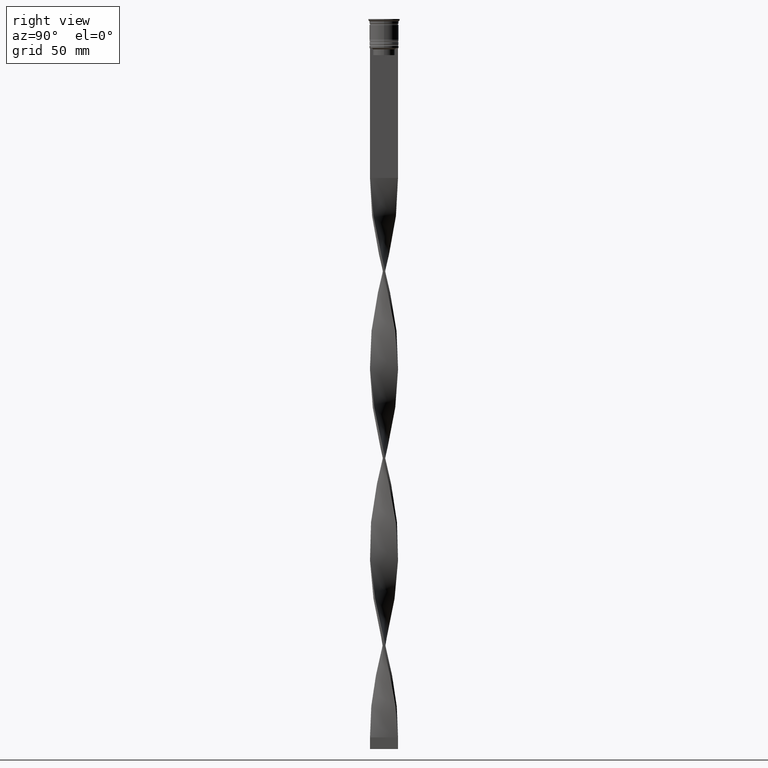
[diagram: clean part render]
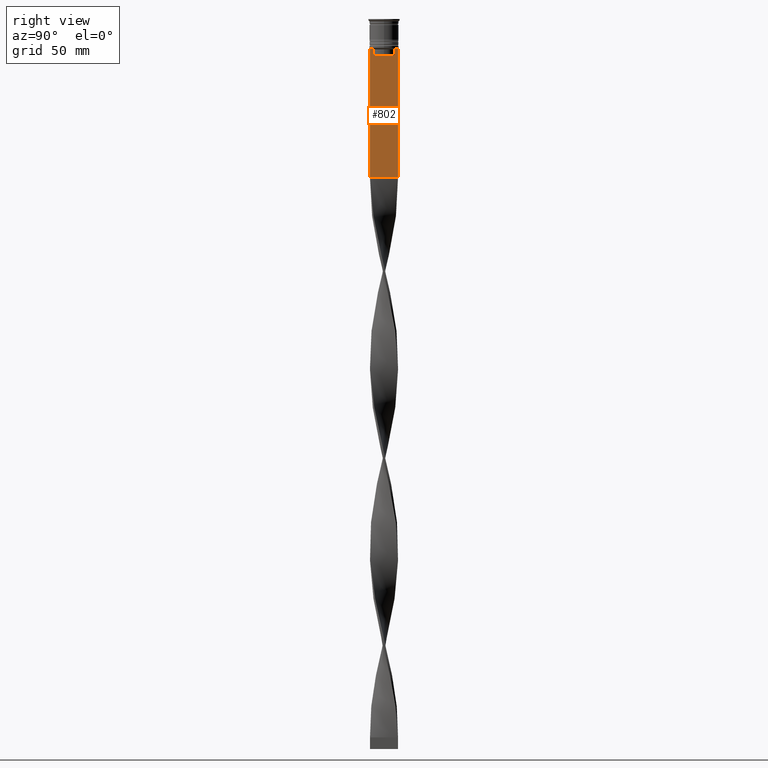
[diagram: same view with one face highlighted and labeled with its STEP entity id]
A machine part, right view. The second image highlights one B-rep face of the part: STEP entity #802.
In plain terms, the highlighted planar face has unit normal (-1, 0, 0).
Its self-contained STEP definition (entity closure, byte-faithful):
#9 = CARTESIAN_POINT ( 'NONE',  ( 0.5000000000000002220, -4.623040125285526436, 0.000000000000000000 ) ) ;
#41 = EDGE_CURVE ( 'NONE', #1544, #2707, #1868, .T. ) ;
#107 = EDGE_CURVE ( 'NONE', #753, #2273, #2910, .T. ) ;
#185 = ORIENTED_EDGE ( 'NONE', *, *, #3658, .T. ) ;
#275 = B_SPLINE_CURVE_WITH_KNOTS ( 'NONE', 3,
 ( #2574, #1315, #2221, #3180 ),
 .UNSPECIFIED., .F., .F.,
 ( 4, 4 ),
 ( 0.02203698174624554168, 0.02275222543365897770 ),
 .UNSPECIFIED. ) ;
#293 = CARTESIAN_POINT ( 'NONE',  ( 0.5000000000000002220, -4.623040125285526436, -15.50000000000000000 ) ) ;
#296 = CARTESIAN_POINT ( 'NONE',  ( 0.5000000000000002220, 4.623040125285526436, -13.00000000000000178 ) ) ;
#368 = CARTESIAN_POINT ( 'NONE',  ( 0.5000000000000002220, 5.125670687822231564, -12.50000000000000000 ) ) ;
#387 = ORIENTED_EDGE ( 'NONE', *, *, #2820, .T. ) ;
#430 = CARTESIAN_POINT ( 'NONE',  ( 0.5000000000000002220, 4.650000000000001243, -15.50000000000000000 ) ) ;
#523 = ORIENTED_EDGE ( 'NONE', *, *, #2018, .T. ) ;
#591 = CARTESIAN_POINT ( 'NONE',  ( 0.5000000000000002220, -6.000000000000000000, -68.00000000000000000 ) ) ;
#617 = DIRECTION ( 'NONE',  ( 0.000000000000000000, 0.000000000000000000, -1.000000000000000000 ) ) ;
#649 = B_SPLINE_CURVE_WITH_KNOTS ( 'NONE', 3,
 ( #1778, #3022, #1481, #2718 ),
 .UNSPECIFIED., .F., .F.,
 ( 4, 4 ),
 ( 0.008759809102772709091, 0.009468778395565353653 ),
 .UNSPECIFIED. ) ;
#679 = DIRECTION ( 'NONE',  ( 0.000000000000000000, -1.000000000000000000, 0.000000000000000000 ) ) ;
#753 = VERTEX_POINT ( 'NONE', #1066 ) ;
#763 = ORIENTED_EDGE ( 'NONE', *, *, #1148, .F. ) ;
#789 = VECTOR ( 'NONE', #2602, 1000.000000000000000 ) ;
#802 = ADVANCED_FACE ( 'NONE', ( #2369 ), #3262, .F. ) ;
#917 = VERTEX_POINT ( 'NONE', #2185 ) ;
#974 = AXIS2_PLACEMENT_3D ( 'NONE', #1418, #1105, #1763 ) ;
#983 = CARTESIAN_POINT ( 'NONE',  ( 0.5000000000000002220, -6.000000000000000000, -12.50000000000000000 ) ) ;
#1066 = CARTESIAN_POINT ( 'NONE',  ( 0.5000000000000002220, -6.000000000000000000, -12.50000000000000000 ) ) ;
#1105 = DIRECTION ( 'NONE',  ( -1.000000000000000000, 0.000000000000000000, 0.000000000000000000 ) ) ;
#1121 = EDGE_CURVE ( 'NONE', #2707, #917, #275, .T. ) ;
#1141 = EDGE_LOOP ( 'NONE', ( #185, #2027, #3665, #523, #3512, #2997, #387, #3747, #1647, #763 ) ) ;
#1148 = EDGE_CURVE ( 'NONE', #2991, #2174, #3222, .T. ) ;
#1209 = VECTOR ( 'NONE', #2187, 1000.000000000000000 ) ;
#1230 = LINE ( 'NONE', #2469, #2219 ) ;
#1275 = DIRECTION ( 'NONE',  ( 0.000000000000000000, 0.000000000000000000, -1.000000000000000000 ) ) ;
#1315 = CARTESIAN_POINT ( 'NONE',  ( 0.5000000000000002220, -4.790630799407577634, -12.83338098686238915 ) ) ;
#1418 = CARTESIAN_POINT ( 'NONE',  ( 0.5000000000000002220, -6.000000000000000000, -0.4584054212077061097 ) ) ;
#1472 = VECTOR ( 'NONE', #1996, 1000.000000000000000 ) ;
#1481 = CARTESIAN_POINT ( 'NONE',  ( 0.5000000000000002220, 4.790630915080664742, -12.83338087185995491 ) ) ;
#1544 = VERTEX_POINT ( 'NONE', #293 ) ;
#1560 = DIRECTION ( 'NONE',  ( 0.000000000000000000, -1.000000000000000000, 0.000000000000000000 ) ) ;
#1573 = EDGE_CURVE ( 'NONE', #3766, #1685, #1230, .T. ) ;
#1583 = EDGE_CURVE ( 'NONE', #2076, #3766, #649, .T. ) ;
#1591 = DIRECTION ( 'NONE',  ( 0.000000000000000000, 1.000000000000000000, 0.000000000000000000 ) ) ;
#1647 = ORIENTED_EDGE ( 'NONE', *, *, #3116, .T. ) ;
#1685 = VERTEX_POINT ( 'NONE', #3331 ) ;
#1711 = CARTESIAN_POINT ( 'NONE',  ( 0.5000000000000002220, 6.000000000000000888, -12.50000000000000000 ) ) ;
#1715 = VECTOR ( 'NONE', #1560, 1000.000000000000000 ) ;
#1763 = DIRECTION ( 'NONE',  ( 0.000000000000000000, 0.000000000000000000, 1.000000000000000000 ) ) ;
#1778 = CARTESIAN_POINT ( 'NONE',  ( 0.5000000000000002220, 5.125670687822231564, -12.50000000000000000 ) ) ;
#1868 = LINE ( 'NONE', #9, #1209 ) ;
#1996 = DIRECTION ( 'NONE',  ( 0.000000000000000000, 0.000000000000000000, -1.000000000000000000 ) ) ;
#2018 = EDGE_CURVE ( 'NONE', #1685, #1544, #2907, .T. ) ;
#2027 = ORIENTED_EDGE ( 'NONE', *, *, #1583, .T. ) ;
#2076 = VERTEX_POINT ( 'NONE', #368 ) ;
#2105 = LINE ( 'NONE', #3972, #1715 ) ;
#2133 = LINE ( 'NONE', #591, #3724 ) ;
#2174 = VERTEX_POINT ( 'NONE', #2355 ) ;
#2185 = CARTESIAN_POINT ( 'NONE',  ( 0.5000000000000002220, -5.125670687822231564, -12.50000000000000000 ) ) ;
#2187 = DIRECTION ( 'NONE',  ( -0.000000000000000000, -0.000000000000000000, 1.000000000000000000 ) ) ;
#2219 = VECTOR ( 'NONE', #617, 1000.000000000000000 ) ;
#2221 = CARTESIAN_POINT ( 'NONE',  ( 0.5000000000000002220, -4.958169719475986170, -12.66670967060858111 ) ) ;
#2273 = VERTEX_POINT ( 'NONE', #2990 ) ;
#2355 = CARTESIAN_POINT ( 'NONE',  ( 0.5000000000000002220, 6.000000000000000888, -68.00000000000000000 ) ) ;
#2369 = FACE_OUTER_BOUND ( 'NONE', #1141, .T. ) ;
#2469 = CARTESIAN_POINT ( 'NONE',  ( 0.5000000000000002220, 4.623040125285526436, 0.000000000000000000 ) ) ;
#2574 = CARTESIAN_POINT ( 'NONE',  ( 0.5000000000000002220, -4.623040125285526436, -13.00000000000000178 ) ) ;
#2602 = DIRECTION ( 'NONE',  ( 0.000000000000000000, -1.000000000000000000, 0.000000000000000000 ) ) ;
#2707 = VERTEX_POINT ( 'NONE', #3345 ) ;
#2718 = CARTESIAN_POINT ( 'NONE',  ( 0.5000000000000002220, 4.623040125285526436, -13.00000000000000178 ) ) ;
#2820 = EDGE_CURVE ( 'NONE', #917, #753, #3711, .T. ) ;
#2907 = LINE ( 'NONE', #430, #789 ) ;
#2910 = LINE ( 'NONE', #3138, #1472 ) ;
#2990 = CARTESIAN_POINT ( 'NONE',  ( 0.5000000000000002220, -5.999999999999999112, -68.00000000000000000 ) ) ;
#2991 = VERTEX_POINT ( 'NONE', #1711 ) ;
#2997 = ORIENTED_EDGE ( 'NONE', *, *, #1121, .T. ) ;
#3022 = CARTESIAN_POINT ( 'NONE',  ( 0.5000000000000002220, 4.958169823806760412, -12.66670956677067927 ) ) ;
#3116 = EDGE_CURVE ( 'NONE', #2273, #2174, #2133, .T. ) ;
#3138 = CARTESIAN_POINT ( 'NONE',  ( 0.5000000000000002220, -6.000000000000000000, -0.4584054212077061097 ) ) ;
#3180 = CARTESIAN_POINT ( 'NONE',  ( 0.5000000000000002220, -5.125670687822231564, -12.50000000000000000 ) ) ;
#3199 = CARTESIAN_POINT ( 'NONE',  ( 0.5000000000000002220, 6.000000000000000888, -0.4584054212077061097 ) ) ;
#3222 = LINE ( 'NONE', #3199, #3844 ) ;
#3262 = PLANE ( 'NONE',  #974 ) ;
#3331 = CARTESIAN_POINT ( 'NONE',  ( 0.5000000000000002220, 4.623040125285526436, -15.50000000000000000 ) ) ;
#3345 = CARTESIAN_POINT ( 'NONE',  ( 0.5000000000000002220, -4.623040125285526436, -13.00000000000000178 ) ) ;
#3512 = ORIENTED_EDGE ( 'NONE', *, *, #41, .T. ) ;
#3521 = VECTOR ( 'NONE', #679, 1000.000000000000000 ) ;
#3658 = EDGE_CURVE ( 'NONE', #2991, #2076, #2105, .T. ) ;
#3665 = ORIENTED_EDGE ( 'NONE', *, *, #1573, .T. ) ;
#3711 = LINE ( 'NONE', #983, #3521 ) ;
#3724 = VECTOR ( 'NONE', #1591, 1000.000000000000000 ) ;
#3747 = ORIENTED_EDGE ( 'NONE', *, *, #107, .T. ) ;
#3766 = VERTEX_POINT ( 'NONE', #296 ) ;
#3844 = VECTOR ( 'NONE', #1275, 1000.000000000000000 ) ;
#3972 = CARTESIAN_POINT ( 'NONE',  ( 0.5000000000000002220, -6.000000000000000000, -12.50000000000000000 ) ) ;